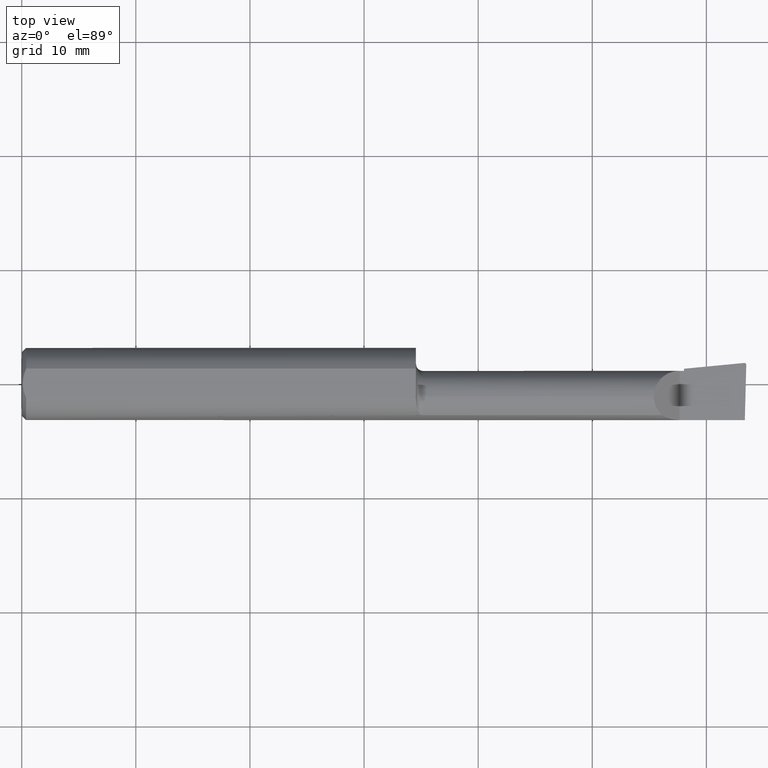
[diagram: clean part render]
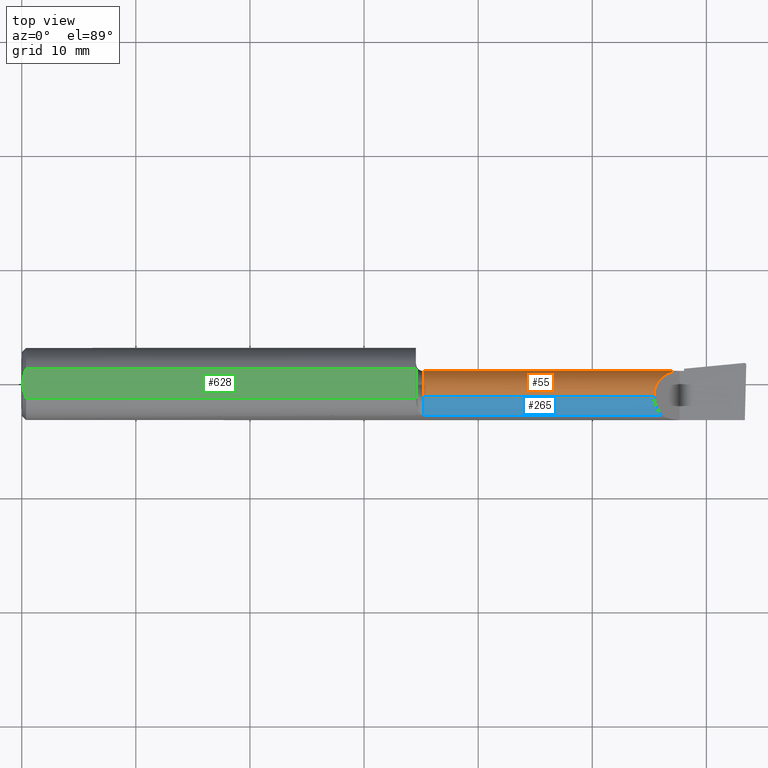
[diagram: same view with three faces highlighted in distinct colors, each labeled with its STEP entity id]
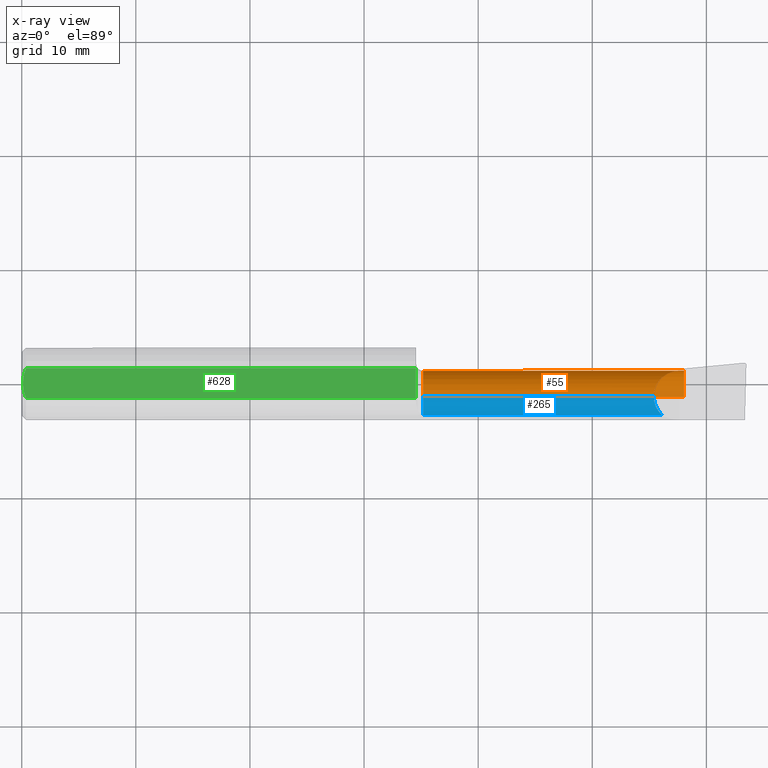
[diagram: x-ray of the same camera — body ghosted, the three highlighted faces saturated]
A machine part, top view with three faces highlighted in distinct colors.
The next image is the same camera in x-ray (body ghosted, the three faces saturated) — at least one of them is partly hidden behind the body in this view.
Their STEP definitions:

[orange] entity #55 — the highlighted cylindrical surface (edge-blend (fillet) strip) has radius 2.2644 mm, axis along (-1, -0, -0).
#13 = CARTESIAN_POINT ( 'NONE',  ( 2.285000000000000142, 0.04514999999999997488, 9.802154982235647216E-16 ) ) ;
#21 = DIRECTION ( 'NONE',  ( -1.000000000000000000, -0.000000000000000000, -0.000000000000000000 ) ) ;
#26 = DIRECTION ( 'NONE',  ( 0.000000000000000000, 0.000000000000000000, 1.000000000000000000 ) ) ;
#43 = VERTEX_POINT ( 'NONE', #339 ) ;
#44 = CIRCLE ( 'NONE', #148, 0.08914999999999999314 ) ;
#55 = ADVANCED_FACE ( 'NONE', ( #670 ), #599, .T. ) ;
#86 = CARTESIAN_POINT ( 'NONE',  ( 2.217777139085561622, 0.04514999999999994712, 0.05222286091443855555 ) ) ;
#135 = ORIENTED_EDGE ( 'NONE', *, *, #360, .T. ) ;
#148 = AXIS2_PLACEMENT_3D ( 'NONE', #727, #527, #531 ) ;
#155 = VERTEX_POINT ( 'NONE', #555 ) ;
#157 = DIRECTION ( 'NONE',  ( -1.000000000000000000, -0.000000000000000000, -0.000000000000000000 ) ) ;
#172 = CARTESIAN_POINT ( 'NONE',  ( 4.111069666048746882E-31, 0.04514999999999992630, 9.802154982235641300E-16 ) ) ;
#175 = EDGE_CURVE ( 'NONE', #155, #772, #237, .T. ) ;
#237 = LINE ( 'NONE', #374, #524 ) ;
#249 = EDGE_CURVE ( 'NONE', #438, #556, #446, .T. ) ;
#262 = VERTEX_POINT ( 'NONE', #13 ) ;
#304 = DIRECTION ( 'NONE',  ( 1.000000000000000000, 0.000000000000000000, 0.000000000000000000 ) ) ;
#317 = CARTESIAN_POINT ( 'NONE',  ( 1.385000000000000009, -0.04399999999999999745, -0.08914999999999988212 ) ) ;
#332 = CARTESIAN_POINT ( 'NONE',  ( 2.180849999999999067, 0.008222860914438547691, 0.08914999999999995151 ) ) ;
#333 = ORIENTED_EDGE ( 'NONE', *, *, #586, .F. ) ;
#334 = VECTOR ( 'NONE', #619, 39.37007874015748143 ) ;
#337 = VECTOR ( 'NONE', #304, 39.37007874015748143 ) ;
#339 = CARTESIAN_POINT ( 'NONE',  ( 2.270000000000000018, 0.04514999999999985691, 2.816687638038912303E-17 ) ) ;
#342 =( BOUNDED_CURVE ( )  B_SPLINE_CURVE ( 3, ( #723, #332, #86, #609 ),
 .UNSPECIFIED., .F., .T. ) 
 B_SPLINE_CURVE_WITH_KNOTS ( ( 4, 4 ),
 ( 0.000000000000000000, 1.570796326794896558 ),
 .UNSPECIFIED. ) 
 CURVE ( )  GEOMETRIC_REPRESENTATION_ITEM ( )  RATIONAL_B_SPLINE_CURVE ( ( 1.000000000000000000, 0.8047378541243649375, 0.8047378541243649375, 1.000000000000000000 ) ) 
 REPRESENTATION_ITEM ( '' )  );
#350 = ORIENTED_EDGE ( 'NONE', *, *, #175, .F. ) ;
#360 = EDGE_CURVE ( 'NONE', #262, #438, #44, .T. ) ;
#363 = CARTESIAN_POINT ( 'NONE',  ( 0.000000000000000000, -0.04399999999999998357, -0.08914999999999993763 ) ) ;
#374 = CARTESIAN_POINT ( 'NONE',  ( 0.000000000000000000, -0.04399999999999999745, 0.08914999999999993763 ) ) ;
#423 = CIRCLE ( 'NONE', #681, 0.08914999999999988212 ) ;
#431 = LINE ( 'NONE', #172, #337 ) ;
#438 = VERTEX_POINT ( 'NONE', #798 ) ;
#446 = LINE ( 'NONE', #363, #334 ) ;
#447 = EDGE_LOOP ( 'NONE', ( #135, #804, #333, #350, #755, #708 ) ) ;
#494 = CARTESIAN_POINT ( 'NONE',  ( 1.385000000000000009, -0.04400000000000000439, 0.08914999999999988212 ) ) ;
#504 = DIRECTION ( 'NONE',  ( -1.000000000000000000, -0.000000000000000000, -0.000000000000000000 ) ) ;
#524 = VECTOR ( 'NONE', #504, 39.37007874015748143 ) ;
#527 = DIRECTION ( 'NONE',  ( -1.000000000000000000, -0.000000000000000000, -0.000000000000000000 ) ) ;
#531 = DIRECTION ( 'NONE',  ( 0.000000000000000000, 0.000000000000000000, 1.000000000000000000 ) ) ;
#546 = CARTESIAN_POINT ( 'NONE',  ( 0.000000000000000000, -0.04399999999999999745, 0.000000000000000000 ) ) ;
#555 = CARTESIAN_POINT ( 'NONE',  ( 2.180849999999999511, -0.04399999999999999745, 0.08914999999999993763 ) ) ;
#556 = VERTEX_POINT ( 'NONE', #317 ) ;
#586 = EDGE_CURVE ( 'NONE', #772, #556, #423, .T. ) ;
#597 = EDGE_CURVE ( 'NONE', #155, #43, #342, .T. ) ;
#599 = CYLINDRICAL_SURFACE ( 'NONE', #802, 0.08914999999999993763 ) ;
#609 = CARTESIAN_POINT ( 'NONE',  ( 2.270000000000000018, 0.04514999999999985691, 2.816687638038912303E-17 ) ) ;
#610 = DIRECTION ( 'NONE',  ( 0.000000000000000000, 0.000000000000000000, 1.000000000000000000 ) ) ;
#619 = DIRECTION ( 'NONE',  ( -1.000000000000000000, -0.000000000000000000, -0.000000000000000000 ) ) ;
#652 = CARTESIAN_POINT ( 'NONE',  ( 1.385000000000000009, -0.04399999999999999745, 0.000000000000000000 ) ) ;
#670 = FACE_OUTER_BOUND ( 'NONE', #447, .T. ) ;
#681 = AXIS2_PLACEMENT_3D ( 'NONE', #652, #21, #26 ) ;
#708 = ORIENTED_EDGE ( 'NONE', *, *, #749, .T. ) ;
#723 = CARTESIAN_POINT ( 'NONE',  ( 2.180849999999999511, -0.04399999999999999745, 0.08914999999999993763 ) ) ;
#727 = CARTESIAN_POINT ( 'NONE',  ( 2.285000000000000142, -0.04399999999999999745, 0.000000000000000000 ) ) ;
#749 = EDGE_CURVE ( 'NONE', #43, #262, #431, .T. ) ;
#755 = ORIENTED_EDGE ( 'NONE', *, *, #597, .T. ) ;
#772 = VERTEX_POINT ( 'NONE', #494 ) ;
#798 = CARTESIAN_POINT ( 'NONE',  ( 2.285000000000000142, -0.04399999999999999745, -0.08914999999999999314 ) ) ;
#802 = AXIS2_PLACEMENT_3D ( 'NONE', #546, #157, #610 ) ;
#804 = ORIENTED_EDGE ( 'NONE', *, *, #249, .T. ) ;

[blue] entity #265 — the highlighted cylindrical surface (edge-blend (fillet) strip) has radius 2.2644 mm, axis along (-1, -0, -0).
#125 =( BOUNDED_CURVE ( )  B_SPLINE_CURVE ( 3, ( #654, #757, #147, #536 ),
 .UNSPECIFIED., .F., .F. ) 
 B_SPLINE_CURVE_WITH_KNOTS ( ( 4, 4 ),
 ( 5.469179596148850742, 6.283185307179586232 ),
 .UNSPECIFIED. ) 
 CURVE ( )  GEOMETRIC_REPRESENTATION_ITEM ( )  RATIONAL_B_SPLINE_CURVE ( ( 1.000000000000000000, 0.9455409277260480305, 0.9455409277260480305, 1.000000000000000000 ) ) 
 REPRESENTATION_ITEM ( '' )  );
#147 = CARTESIAN_POINT ( 'NONE',  ( 2.180849999999999067, -0.06888227343086726628, 0.08914999999999995151 ) ) ;
#151 = CARTESIAN_POINT ( 'NONE',  ( 0.000000000000000000, -0.04399999999999999745, 0.000000000000000000 ) ) ;
#155 = VERTEX_POINT ( 'NONE', #555 ) ;
#175 = EDGE_CURVE ( 'NONE', #155, #772, #237, .T. ) ;
#188 = AXIS2_PLACEMENT_3D ( 'NONE', #151, #273, #660 ) ;
#206 = FACE_OUTER_BOUND ( 'NONE', #248, .T. ) ;
#209 = VERTEX_POINT ( 'NONE', #305 ) ;
#213 = EDGE_CURVE ( 'NONE', #396, #772, #694, .T. ) ;
#231 = CARTESIAN_POINT ( 'NONE',  ( 1.385000000000000009, -0.04399999999999999745, 0.000000000000000000 ) ) ;
#237 = LINE ( 'NONE', #374, #524 ) ;
#248 = EDGE_LOOP ( 'NONE', ( #691, #808, #326, #469 ) ) ;
#265 = ADVANCED_FACE ( 'NONE', ( #206 ), #717, .T. ) ;
#273 = DIRECTION ( 'NONE',  ( -1.000000000000000000, -0.000000000000000000, -0.000000000000000000 ) ) ;
#305 = CARTESIAN_POINT ( 'NONE',  ( 2.208790356734260829, -0.1088159090909091992, 0.06120964326573857806 ) ) ;
#322 = EDGE_CURVE ( 'NONE', #209, #155, #125, .T. ) ;
#326 = ORIENTED_EDGE ( 'NONE', *, *, #213, .F. ) ;
#336 = AXIS2_PLACEMENT_3D ( 'NONE', #231, #559, #500 ) ;
#369 = VECTOR ( 'NONE', #664, 39.37007874015748143 ) ;
#372 = EDGE_CURVE ( 'NONE', #396, #209, #722, .T. ) ;
#374 = CARTESIAN_POINT ( 'NONE',  ( 0.000000000000000000, -0.04399999999999999745, 0.08914999999999993763 ) ) ;
#396 = VERTEX_POINT ( 'NONE', #650 ) ;
#412 = CARTESIAN_POINT ( 'NONE',  ( 1.834999999999999964, -0.1088159090909092547, 0.06120964326573859193 ) ) ;
#469 = ORIENTED_EDGE ( 'NONE', *, *, #372, .T. ) ;
#494 = CARTESIAN_POINT ( 'NONE',  ( 1.385000000000000009, -0.04400000000000000439, 0.08914999999999988212 ) ) ;
#500 = DIRECTION ( 'NONE',  ( 0.000000000000000000, 0.000000000000000000, 1.000000000000000000 ) ) ;
#504 = DIRECTION ( 'NONE',  ( -1.000000000000000000, -0.000000000000000000, -0.000000000000000000 ) ) ;
#524 = VECTOR ( 'NONE', #504, 39.37007874015748143 ) ;
#536 = CARTESIAN_POINT ( 'NONE',  ( 2.180849999999999511, -0.04399999999999999745, 0.08914999999999993763 ) ) ;
#555 = CARTESIAN_POINT ( 'NONE',  ( 2.180849999999999511, -0.04399999999999999745, 0.08914999999999993763 ) ) ;
#559 = DIRECTION ( 'NONE',  ( -1.000000000000000000, -0.000000000000000000, -0.000000000000000000 ) ) ;
#650 = CARTESIAN_POINT ( 'NONE',  ( 1.385000000000000009, -0.1088159090909091020, 0.06120964326573865438 ) ) ;
#654 = CARTESIAN_POINT ( 'NONE',  ( 2.208790356734260829, -0.1088159090909091992, 0.06120964326573857806 ) ) ;
#660 = DIRECTION ( 'NONE',  ( 0.000000000000000000, 0.000000000000000000, 1.000000000000000000 ) ) ;
#664 = DIRECTION ( 'NONE',  ( 1.000000000000000000, 0.000000000000000000, 0.000000000000000000 ) ) ;
#691 = ORIENTED_EDGE ( 'NONE', *, *, #322, .T. ) ;
#694 = CIRCLE ( 'NONE', #336, 0.08914999999999988212 ) ;
#717 = CYLINDRICAL_SURFACE ( 'NONE', #188, 0.08914999999999993763 ) ;
#722 = LINE ( 'NONE', #412, #369 ) ;
#757 = CARTESIAN_POINT ( 'NONE',  ( 2.190699866855738698, -0.09173194857106679867, 0.07930013314426062609 ) ) ;
#772 = VERTEX_POINT ( 'NONE', #494 ) ;
#808 = ORIENTED_EDGE ( 'NONE', *, *, #175, .T. ) ;

[green] entity #628 — the highlighted planar face has unit normal (0, -0, -1).
#19 = EDGE_CURVE ( 'NONE', #388, #64, #153, .T. ) ;
#31 = LINE ( 'NONE', #731, #491 ) ;
#54 = CARTESIAN_POINT ( 'NONE',  ( 0.004000000000000278506, 1.406179932551309785E-17, 0.1138500000000000345 ) ) ;
#64 = VERTEX_POINT ( 'NONE', #275 ) ;
#78 = CARTESIAN_POINT ( 'NONE',  ( 1.360000097795984741, -0.05124158467554382895, 0.1138500000000000345 ) ) ;
#79 = VERTEX_POINT ( 'NONE', #410 ) ;
#83 = CARTESIAN_POINT ( 'NONE',  ( 1.360001800064804867, -0.04520694029916791368, 0.1138500000000000206 ) ) ;
#88 = VERTEX_POINT ( 'NONE', #736 ) ;
#89 = CARTESIAN_POINT ( 'NONE',  ( 0.01499999999999999424, 0.05124158467494922820, 0.1138500000000000345 ) ) ;
#91 = EDGE_CURVE ( 'NONE', #88, #579, #786, .T. ) ;
#93 = DIRECTION ( 'NONE',  ( 1.000000000000000000, 0.000000000000000000, 0.000000000000000000 ) ) ;
#99 = CARTESIAN_POINT ( 'NONE',  ( 0.005037769558486251270, -0.01754148797401016216, 0.1138500000000000206 ) ) ;
#100 = EDGE_CURVE ( 'NONE', #416, #325, #819, .T. ) ;
#102 = CARTESIAN_POINT ( 'NONE',  ( 0.004000000000000248149, 0.008831293378136255423, 0.1138500000000000345 ) ) ;
#124 = CARTESIAN_POINT ( 'NONE',  ( 1.360001800064804867, -0.04400000000000000439, 0.1138500000000000345 ) ) ;
#126 = CARTESIAN_POINT ( 'NONE',  ( 1.360000000000000320, 0.1748500000000000609, 0.1138500000000000068 ) ) ;
#130 = ORIENTED_EDGE ( 'NONE', *, *, #91, .F. ) ;
#142 = FACE_OUTER_BOUND ( 'NONE', #390, .T. ) ;
#146 = CARTESIAN_POINT ( 'NONE',  ( 0.01499999999999998730, -0.05124158467494919350, 0.1138500000000000345 ) ) ;
#153 = LINE ( 'NONE', #788, #202 ) ;
#184 = CARTESIAN_POINT ( 'NONE',  ( 0.01499999999999999424, 0.05124158467494922820, 0.1138500000000000345 ) ) ;
#202 = VECTOR ( 'NONE', #93, 39.37007874015748143 ) ;
#214 = DIRECTION ( 'NONE',  ( 0.000000000000000000, 1.000000000000000000, -1.464745492742491612E-16 ) ) ;
#223 = PLANE ( 'NONE',  #515 ) ;
#243 = EDGE_CURVE ( 'NONE', #325, #388, #543, .T. ) ;
#261 = ORIENTED_EDGE ( 'NONE', *, *, #243, .F. ) ;
#271 = ORIENTED_EDGE ( 'NONE', *, *, #695, .F. ) ;
#275 = CARTESIAN_POINT ( 'NONE',  ( 1.360000000000000320, 0.05124158467494921432, 0.1138500000000000206 ) ) ;
#277 = CARTESIAN_POINT ( 'NONE',  ( 1.360001123980412174, -0.03986479258532062836, 0.1138500000000000484 ) ) ;
#281 = VECTOR ( 'NONE', #518, 39.37007874015748143 ) ;
#291 = CARTESIAN_POINT ( 'NONE',  ( 0.004000000000000278506, 1.406179932551309785E-17, 0.1138500000000000345 ) ) ;
#307 = CARTESIAN_POINT ( 'NONE',  ( 0.005053359673950995161, 0.01761291720128071656, 0.1138500000000000484 ) ) ;
#314 = EDGE_CURVE ( 'NONE', #79, #88, #720, .T. ) ;
#325 = VERTEX_POINT ( 'NONE', #473 ) ;
#338 = DIRECTION ( 'NONE',  ( 0.000000000000000000, -1.464745492742491612E-16, -1.000000000000000000 ) ) ;
#355 = CARTESIAN_POINT ( 'NONE',  ( 0.008889541251485982148, -0.03475029298915140868, 0.1138500000000000484 ) ) ;
#359 = CARTESIAN_POINT ( 'NONE',  ( 1.360000312090655639, -0.05003465832687906123, 0.1138500000000000761 ) ) ;
#388 = VERTEX_POINT ( 'NONE', #89 ) ;
#390 = EDGE_LOOP ( 'NONE', ( #620, #420, #642, #261, #505, #271, #130 ) ) ;
#402 = CARTESIAN_POINT ( 'NONE',  ( 1.360001800064805533, -0.04262160478489895182, 0.1138500000000000761 ) ) ;
#407 = CARTESIAN_POINT ( 'NONE',  ( 1.360000000000000320, -0.03572957074874789918, 0.1138500000000000345 ) ) ;
#410 = CARTESIAN_POINT ( 'NONE',  ( 1.360000000000000320, -0.03572957074874789918, 0.1138500000000000345 ) ) ;
#416 = VERTEX_POINT ( 'NONE', #741 ) ;
#420 = ORIENTED_EDGE ( 'NONE', *, *, #517, .F. ) ;
#425 = CARTESIAN_POINT ( 'NONE',  ( 1.360001294887845491, -0.04762079988859416885, 0.1138500000000000484 ) ) ;
#473 = CARTESIAN_POINT ( 'NONE',  ( 0.004000000000000278506, 1.406179932551309785E-17, 0.1138500000000000345 ) ) ;
#485 = CARTESIAN_POINT ( 'NONE',  ( 0.01168016970778672399, -0.04315282601121772643, 0.1138500000000000206 ) ) ;
#491 = VECTOR ( 'NONE', #529, 39.37007874015748143 ) ;
#505 = ORIENTED_EDGE ( 'NONE', *, *, #100, .F. ) ;
#515 = AXIS2_PLACEMENT_3D ( 'NONE', #718, #338, #214 ) ;
#517 = EDGE_CURVE ( 'NONE', #64, #79, #698, .T. ) ;
#518 = DIRECTION ( 'NONE',  ( 0.000000000000000000, -1.000000000000000000, 1.464745492742491612E-16 ) ) ;
#529 = DIRECTION ( 'NONE',  ( -1.000000000000000000, -0.000000000000000000, -0.000000000000000000 ) ) ;
#543 = B_SPLINE_CURVE_WITH_KNOTS ( 'NONE', 3,
 ( #54, #102, #307, #563, #754, #184 ),
 .UNSPECIFIED., .F., .F.,
 ( 4, 2, 4 ),
 ( 0.002303251115488625690, 0.002969128157203607035, 0.003635005198918588379 ),
 .UNSPECIFIED. ) ;
#563 = CARTESIAN_POINT ( 'NONE',  ( 0.008876515511621064711, 0.03469031959364226453, 0.1138500000000000206 ) ) ;
#579 = VERTEX_POINT ( 'NONE', #78 ) ;
#614 = CARTESIAN_POINT ( 'NONE',  ( 0.004000000000000249016, -0.008832088689467585546, 0.1138500000000000484 ) ) ;
#620 = ORIENTED_EDGE ( 'NONE', *, *, #314, .F. ) ;
#628 = ADVANCED_FACE ( 'NONE', ( #142 ), #223, .F. ) ;
#642 = ORIENTED_EDGE ( 'NONE', *, *, #19, .F. ) ;
#662 = CARTESIAN_POINT ( 'NONE',  ( 1.360001800064804867, -0.04400000000000000439, 0.1138500000000000345 ) ) ;
#695 = EDGE_CURVE ( 'NONE', #579, #416, #31, .T. ) ;
#698 = LINE ( 'NONE', #126, #281 ) ;
#713 = CARTESIAN_POINT ( 'NONE',  ( 1.360000000000000320, -0.03710796596384894480, 0.1138500000000000206 ) ) ;
#718 = CARTESIAN_POINT ( 'NONE',  ( 2.500000000000000000, 0.1748500000000000609, 0.1138500000000000068 ) ) ;
#720 = B_SPLINE_CURVE_WITH_KNOTS ( 'NONE', 3,
 ( #407, #713, #277, #402, #124 ),
 .UNSPECIFIED., .F., .F.,
 ( 4, 1, 4 ),
 ( 0.0009734136918183793974, 0.001078393000640053521, 0.001183372309461727537 ),
 .UNSPECIFIED. ) ;
#731 = CARTESIAN_POINT ( 'NONE',  ( 0.000000000000000000, -0.05124158467494919350, 0.1138500000000000345 ) ) ;
#736 = CARTESIAN_POINT ( 'NONE',  ( 1.360001800064804867, -0.04400000000000000439, 0.1138500000000000345 ) ) ;
#741 = CARTESIAN_POINT ( 'NONE',  ( 0.01499999999999998730, -0.05124158467494919350, 0.1138500000000000345 ) ) ;
#754 = CARTESIAN_POINT ( 'NONE',  ( 0.01166851468367537115, 0.04312442857252158507, 0.1138500000000000345 ) ) ;
#786 = B_SPLINE_CURVE_WITH_KNOTS ( 'NONE', 3,
 ( #662, #83, #425, #359, #793 ),
 .UNSPECIFIED., .F., .F.,
 ( 4, 1, 4 ),
 ( 0.001183372309461727537, 0.001275293521177762665, 0.001367214732893798010 ),
 .UNSPECIFIED. ) ;
#788 = CARTESIAN_POINT ( 'NONE',  ( 0.000000000000000000, 0.05124158467494922820, 0.1138500000000000345 ) ) ;
#793 = CARTESIAN_POINT ( 'NONE',  ( 1.360000097795984741, -0.05124158467554382895, 0.1138500000000000345 ) ) ;
#819 = B_SPLINE_CURVE_WITH_KNOTS ( 'NONE', 3,
 ( #146, #485, #355, #99, #614, #291 ),
 .UNSPECIFIED., .F., .F.,
 ( 4, 2, 4 ),
 ( 0.0009713770995563920409, 0.001637314107522508866, 0.002303251115488625690 ),
 .UNSPECIFIED. ) ;